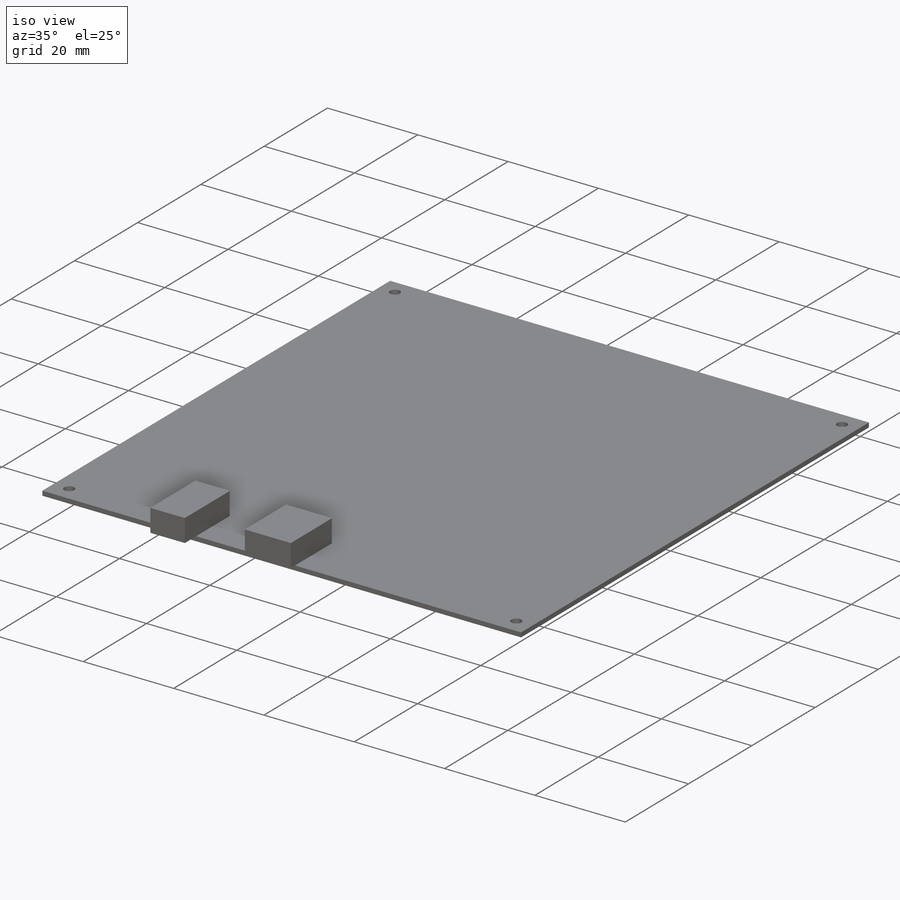
[diagram: iso view]
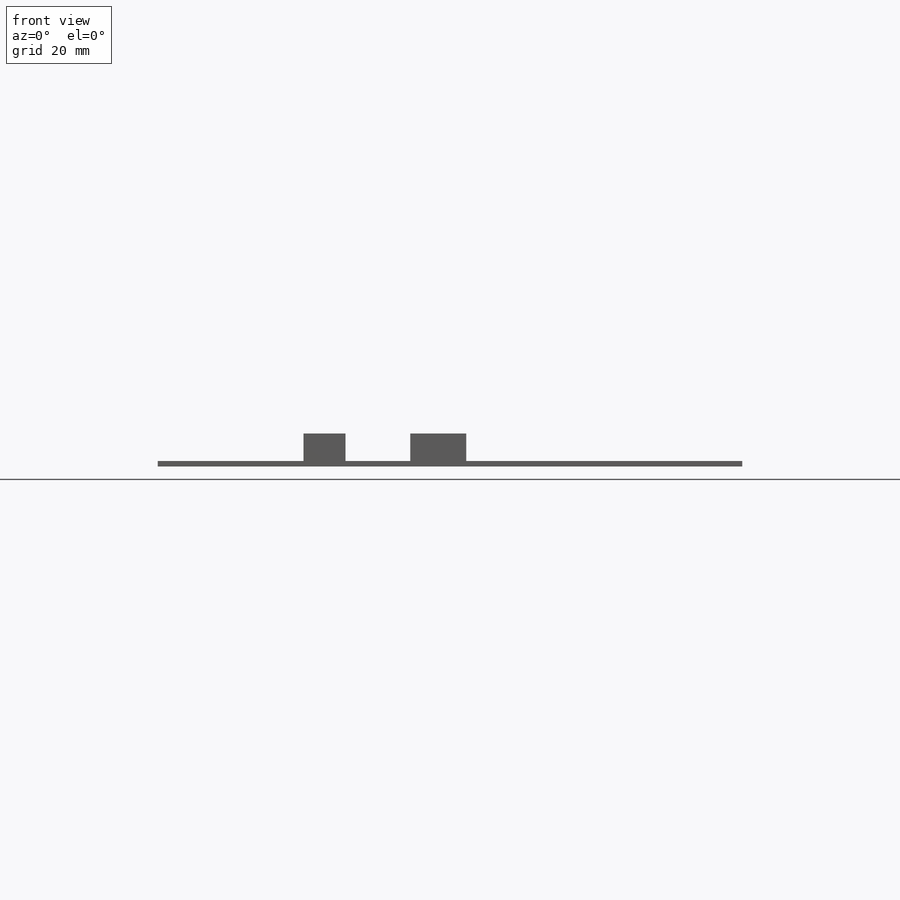
[diagram: front view]
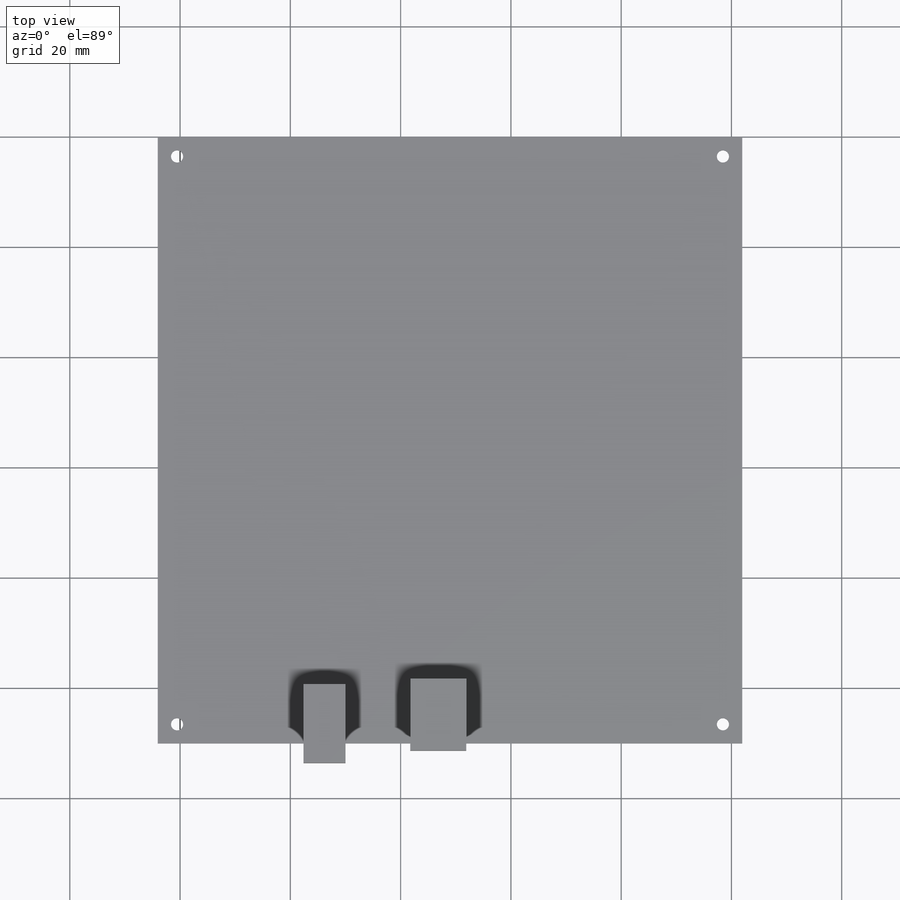
[diagram: top view]
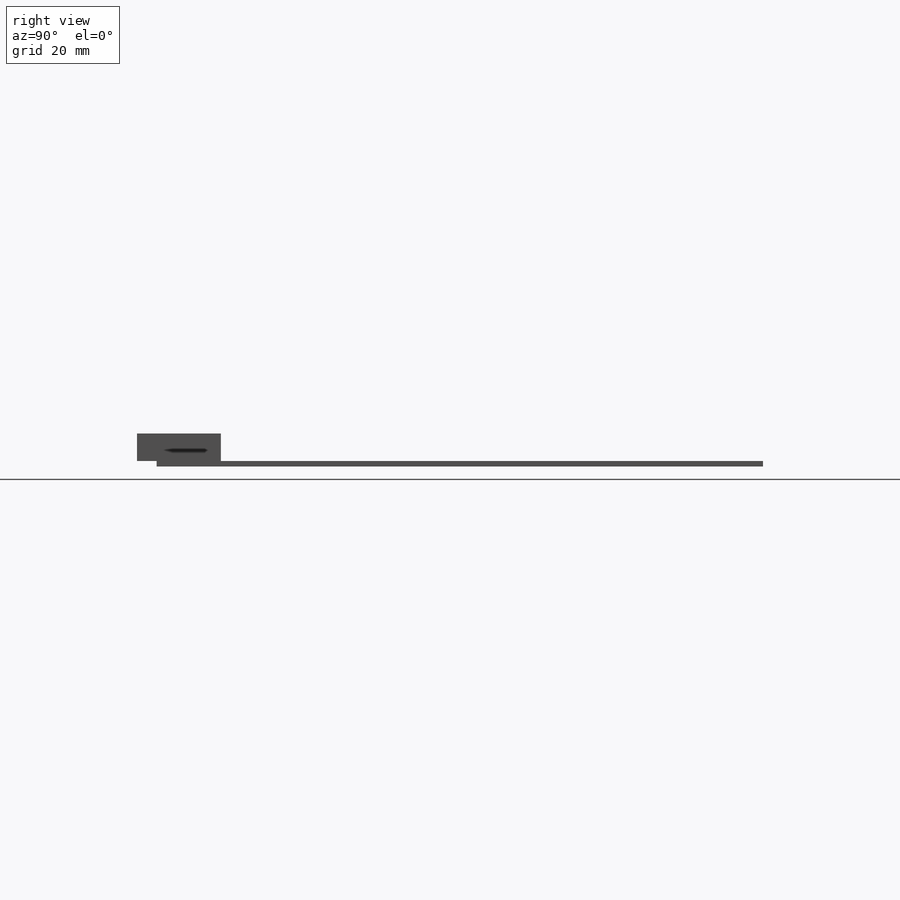
[diagram: right view]
SOLIDWORKS PART (.sldprt)
format: sldprt  version: not decoded by parser v0  size: 228,352 bytes
history: native  units: mm
features: sketch x3, extrude x3, material x1 (+11 scaffold rows collapsed)
feature tree (18):
  scaffold x11  (default folders/planes/origin — collapsed)
  material  "Copper"
  sketch  "Sketch1"  dims[c1.D3=2.2mm c1.D4=2.2mm c1.D6=2.2mm c1.D8=2.2mm c1.D11=2.2mm c1.D14=2.2mm c1.D1=110.0mm c1.D2=106.0mm c2.D4=3.5mm c2.D5=3.5mm c2.D6=3.5mm c2.D7=3.5mm c2.D9=3.5mm c2.D10=3.5mm c2.D12=3.5mm c2.D13=3.5mm]
  extrude  "Boss-Extrude1"  Depth=1mm
  sketch  "3DSketch1"  dims[D1=7.62mm D2=10.67mm D3=3.56mm D4=26.42mm]
  extrude  "Boss-Extrude3"  Depth=5mm
  sketch  "Sketch3"  dims[D1=11.67mm D2=1.33mm D3=10.16mm D4=11.75mm]
  extrude  "Boss-Extrude4"  Depth=5mm
decode coverage: 6 of 6 modeling features carry decoded parameters
note: suppression state not decoded; provenance and decode notes live in map.json
